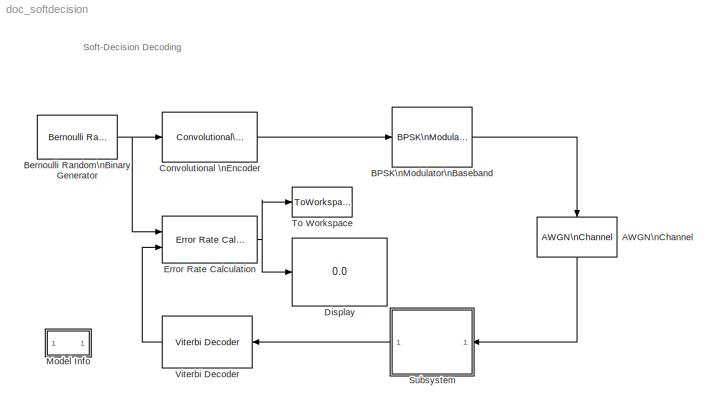
MODEL doc_softdecision
KIND model
CONFIG AbsTol = auto
CONFIG FixedStep = auto
CONFIG MaxStep = auto
CONFIG MinStep = auto
CONFIG RelTol = 1e-3
CONFIG Solver = ode45
CONFIG SolverMode = SingleTasking
CONFIG StartTime = 0.0
CONFIG StopTime = inf
BLOCK [Reference] AWGN\nChannel  REF=commchan2/AWGN\nChannel
  EsNodB = -1
  Ports = [1, 1]
  Ps = 1
  SNRdB = 10
  SourceBlock = commchan2/AWGN\nChannel
  SourceType = AWGN Channel
  Tsym = .5
  noiseMode = Signal to noise ratio  (Es/No)
  seed = 1237
  variance = 1
BLOCK [Reference] BPSK\nModulator\nBaseband  REF=commdigbbndpm2/BPSK\nModulator\nBaseband
  Ph = 0
  Ports = [1, 1]
  SourceBlock = commdigbbndpm2/BPSK\nModulator\nBaseband
  SourceType = BPSK Modulator Baseband
  numSamp = 1
BLOCK [Reference] Bernoulli Random\nBinary Generator  REF=commsource2/Bernoulli Random\nBinary Generator
  P = 0.5
  Ports = [0, 1]
  SourceBlock = commsource2/Bernoulli Random\nBinary Generator
  SourceType = Bernoulli Random Binary Generator
  Ts = 1
  frameBased = on
  orient = off
  sampPerFrame = 10000
  seed = 25741
BLOCK [Reference] Convolutional \nEncoder  REF=commcnvcod2/Convolutional\nEncoder
  Ports = [1, 1]
  SourceBlock = commcnvcod2/Convolutional\nEncoder
  SourceType = Convolutional Encoder
  reset = None
  trellis = poly2trellis(7, [171 133])
BLOCK [Display] Display
  Decimation = 1
  Floating = off
  Format = short
  Ports = [1]
  SampleTime = -1
BLOCK [Reference] Error Rate Calculation  REF=commsink2/Error Rate Calculation
  N = 48
  PMode = Port
  Ports = [2, 1]
  RsMode2 = off
  SourceBlock = commsink2/Error Rate Calculation
  SourceType = Error Rate Calculation
  WsName = ErrorVec
  cp_mode = Entire frame
  maxBits = 1e7
  numErr = 100
  st_delay = 0
  stop = on
  subframe = []
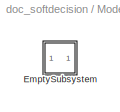
BLOCK [SubSystem] Model Info
  CopyFcn = slcm CopyBlock;
  DeleteFcn = slcm Cancel;
  InitFcn = slcm('UpdateAllCMBlocksInThisModelInit')
  LoadFcn = slcm LoadBlock;
  MaskCallbackString = ||||||||||||||||||||||||||||||
  MaskDescription = This block allows revision control information to be displayed within the model.
  MaskDisplay = text(str2num(LeftAlignmentValue), 0.5, MaskDisplayString, 'HorizontalAlignment', HorizontalTextAlignment)\n
  MaskEnableString = on,on,on,on,on,on,on,on,on,on,on,on,on,on,on,on,on,on,on,on,on,on,on,on,on,on,on,on,on,on,on
  MaskIconFrame = on
  MaskIconOpaque = on
  MaskIconRotate = none
  MaskIconUnits = normalized
  MaskPromptString = InitialSaveTempField|InitialBlockCM|BlockCM|Frame|SaveTempField|DisplayStringWithTags|MaskDisplayString|HorizontalTextAlignment|LeftAlignmentValue|SourceBlockDiagram|TagMaxNumber|CMTag1|CMTag2|CMTag3|CMTag4|CMTag5|CMTag6|CMTag7|CMTag8|CMTag9|CMTag10|CMTag11|CMTag12|CMTag13|CMTag14|CMTag15|CMTag16|CMTag17|CMTag18|CMTag19|CMTag20
  MaskSelfModifiable = on
  MaskStyleString = edit,edit,edit,edit,edit,edit,edit,edit,edit,edit,edit,edit,edit,edit,edit,edit,edit,edit,edit,edit,edit,edit,edit,edit,edit,edit,edit,edit,edit,edit,edit
  MaskToolTipString = on,on,on,on,on,on,on,on,on,on,on,on,on,on,on,on,on,on,on,on,on,on,on,on,on,on,on,on,on,on,on
  MaskTunableValueString = on,on,on,on,on,on,on,on,on,on,on,on,on,on,on,on,on,on,on,on,on,on,on,on,on,on,on,on,on,on,on
  MaskType = CMBlock
  MaskValueString = |none|none|on||Info|Info|Center|0.5|doc_softdecision|20||||||||||||||||||||
  MaskVariableAliases = ,,,,,,,,,,,,,,,,,,,,,,,,,,,,,,
  MaskVariables = InitialSaveTempField=&1;InitialBlockCM=&2;BlockCM=&3;Frame=&4;SaveTempField=&5;DisplayStringWithTags=&6;MaskDisplayString=&7;HorizontalTextAlignment=&8;LeftAlignmentValue=&9;SourceBlockDiagram=&10;TagMaxNumber=@11;CMTag1=&12;CMTag2=&13;CMTag3=&14;CMTag4=&15;CMTag5=&16;CMTag6=&17;CMTag7=&18;CMTag8=&19;CMTag9=&20;CMTag10=&21;CMTag11=&22;CMTag12=&23;CMTag13=&24;CMTag14=&25;CMTag15=&26;CMTag16=&27;CMT...<+45ch>
  MaskVisibilityString = off,off,off,off,off,off,off,off,off,off,off,off,off,off,off,off,off,off,off,off,off,off,off,off,off,off,off,off,off,off,off
  NameChangeFcn = slcm Rename;
  OpenFcn = commdemohelp;
  Ports = []
  PostSaveFcn = slcm('UpdateAllCMBlocksInThisModel')
  RTWFcnNameOpts = Auto
  RTWFileNameOpts = Auto
  RTWSystemCode = Auto
  ShowPortLabels = on
  TreatAsAtomicUnit = off
BLOCK [SubSystem] Model Info/EmptySubsystem
  Ports = []
  RTWFcnNameOpts = Auto
  RTWFileNameOpts = Auto
  RTWSystemCode = Auto
  ShowPortLabels = on
  TreatAsAtomicUnit = off
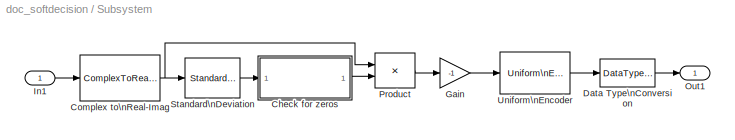
BLOCK [SubSystem] Subsystem
  MaskDisplay = disp('Soft-Output\\nBPSK\\nDemodulator')
  MaskIconFrame = on
  MaskIconOpaque = on
  MaskIconRotate = none
  MaskIconUnits = autoscale
  Ports = [1, 1]
  RTWFcnNameOpts = Auto
  RTWFileNameOpts = Auto
  RTWSystemCode = Auto
  ShowPortLabels = on
  TreatAsAtomicUnit = off
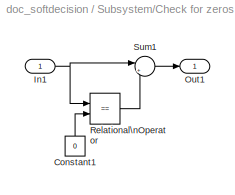
BLOCK [SubSystem] Subsystem/Check for zeros
  MaskDisplay = disp('Check for zeros')
  MaskIconFrame = on
  MaskIconOpaque = on
  MaskIconRotate = none
  MaskIconUnits = autoscale
  Ports = [1, 1]
  RTWFcnNameOpts = Auto
  RTWFileNameOpts = Auto
  RTWSystemCode = Auto
  ShowPortLabels = on
  TreatAsAtomicUnit = off
BLOCK [Constant] Subsystem/Check for zeros/Constant1
  Value = 0
  VectorParams1D = on
BLOCK [Inport] Subsystem/Check for zeros/In1
  Interpolate = on
  Port = 1
BLOCK [Outport] Subsystem/Check for zeros/Out1
  InitialOutput = []
  OutputWhenDisabled = held
  Port = 1
BLOCK [RelationalOperator] Subsystem/Check for zeros/Relational\nOperator
  Operator = ==
BLOCK [Sum] Subsystem/Check for zeros/Sum1
  IconShape = round
  Inputs = |++
  Ports = [2, 1]
  SaturateOnIntegerOverflow = on
BLOCK [ComplexToRealImag] Subsystem/Complex to\nReal-Imag
  Output = Real
  Ports = [1, 1]
BLOCK [DataTypeConversion] Subsystem/Data Type\nConversion
  DataType = auto
  SaturateOnIntegerOverflow = on
BLOCK [Gain] Subsystem/Gain
  Gain = -1
  Multiplication = Element-wise(K.*u)
  SaturateOnIntegerOverflow = on
BLOCK [Inport] Subsystem/In1
  Interpolate = on
  Port = 1
BLOCK [Outport] Subsystem/Out1
  InitialOutput = []
  OutputWhenDisabled = held
  Port = 1
BLOCK [Product] Subsystem/Product
  Inputs = */
  Multiplication = Element-wise(.*)
  Ports = [2, 1]
  SaturateOnIntegerOverflow = on
BLOCK [Reference] Subsystem/Standard\nDeviation  REF=dspstat3/Standard\nDeviation
  Ports = [1, 1]
  SourceBlock = dspstat3/Standard\nDeviation
  SourceType = Standard Deviation
  reset_popup = None
  run = on
BLOCK [Reference] Subsystem/Uniform\nEncoder  REF=dspquant2/Uniform\nEncoder
  Ports = [1, 1]
  SourceBlock = dspquant2/Uniform\nEncoder
  SourceType = Uniform Encoder
  bits = 3
  otype = Unsigned integer
  peak = 2
BLOCK [ToWorkspace] To Workspace
  Decimation = 1
  MaxDataPoints = 1
  SampleTime = -1
  SaveFormat = Array
  VariableName = BER_Data
BLOCK [Reference] Viterbi Decoder  REF=commcnvcod2/Viterbi Decoder
  Ports = [1, 1]
  SourceBlock = commcnvcod2/Viterbi Decoder
  SourceType = Viterbi Decoder
  dectype = Soft Decision
  nsdecb = 3
  opmode = Continuous
  reset = off
  tbdepth = 48
  trellis = poly2trellis(7, [171 133])
LINE AWGN\nChannel:1 -> Subsystem:1
LINE BPSK\nModulator\nBaseband:1 -> AWGN\nChannel:1
NET Bernoulli Random\nBinary Generator:1 -> Convolutional \nEncoder:1, Error Rate Calculation:1
LINE Convolutional \nEncoder:1 -> BPSK\nModulator\nBaseband:1
NET Error Rate Calculation:1 -> Display:1, To Workspace:1
LINE Subsystem/Check for zeros/Constant1:1 -> Subsystem/Check for zeros/Relational\nOperator:2
NET Subsystem/Check for zeros/In1:1 -> Subsystem/Check for zeros/Relational\nOperator:1, Subsystem/Check for zeros/Sum1:1
LINE Subsystem/Check for zeros/Relational\nOperator:1 -> Subsystem/Check for zeros/Sum1:2
LINE Subsystem/Check for zeros/Sum1:1 -> Subsystem/Check for zeros/Out1:1
LINE Subsystem/Check for zeros:1 -> Subsystem/Product:2
NET Subsystem/Complex to\nReal-Imag:1 -> Subsystem/Product:1, Subsystem/Standard\nDeviation:1
LINE Subsystem/Data Type\nConversion:1 -> Subsystem/Out1:1
LINE Subsystem/Gain:1 -> Subsystem/Uniform\nEncoder:1
LINE Subsystem/In1:1 -> Subsystem/Complex to\nReal-Imag:1
LINE Subsystem/Product:1 -> Subsystem/Gain:1
LINE Subsystem/Standard\nDeviation:1 -> Subsystem/Check for zeros:1
LINE Subsystem/Uniform\nEncoder:1 -> Subsystem/Data Type\nConversion:1
LINE Subsystem:1 -> Viterbi Decoder:1
LINE Viterbi Decoder:1 -> Error Rate Calculation:2
note: NET lines group one-source signal fan-out (src -> all destinations, sorted); 1:1 wires keep LINE
